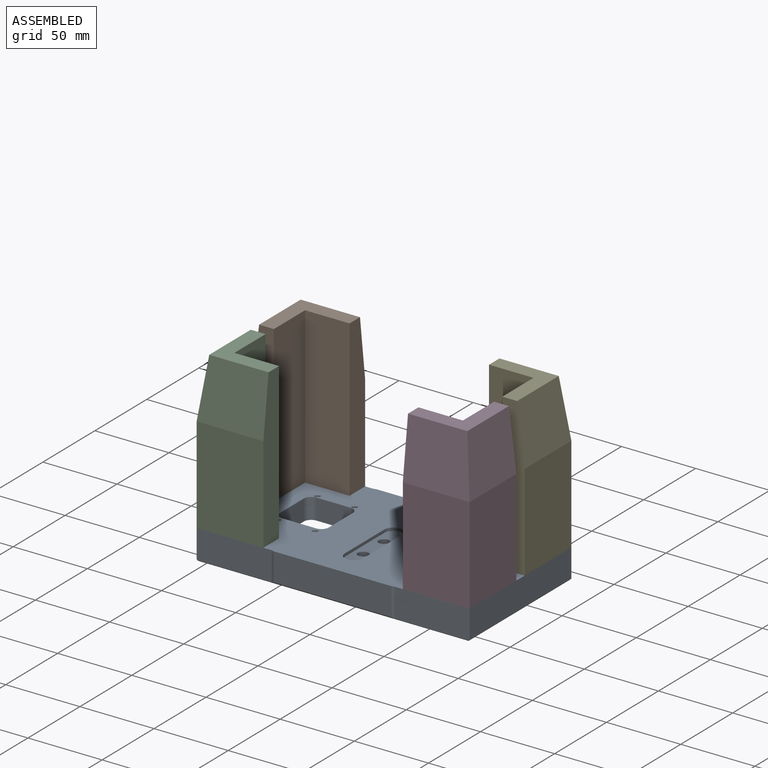
[diagram: assembled view]
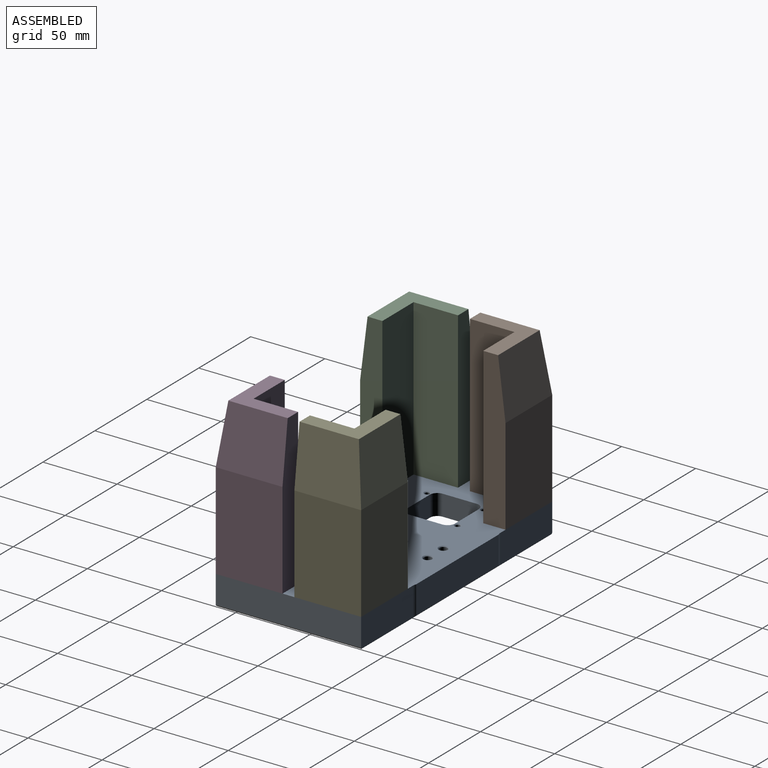
[diagram: assembled view, second angle]
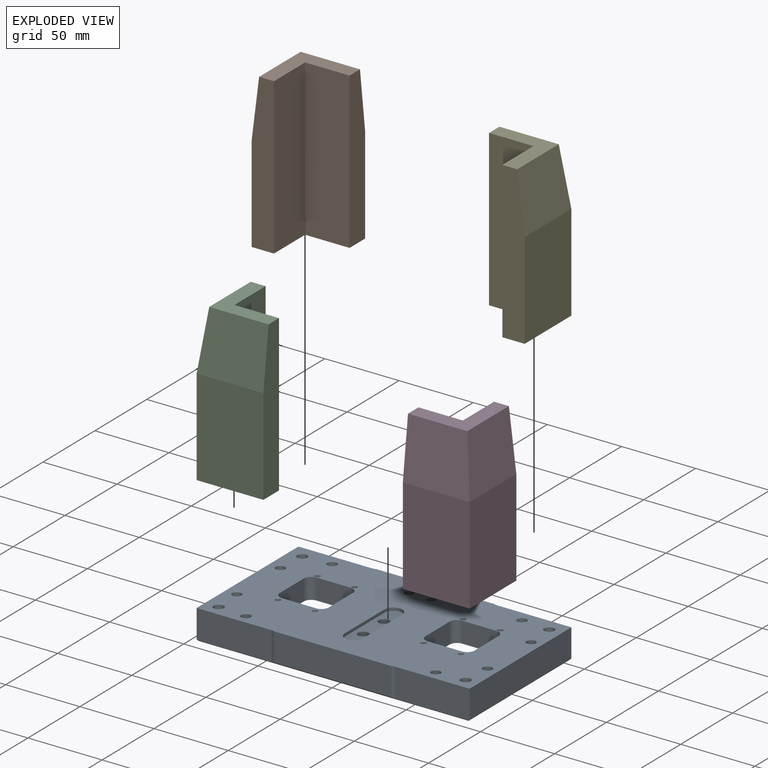
[diagram: exploded view]
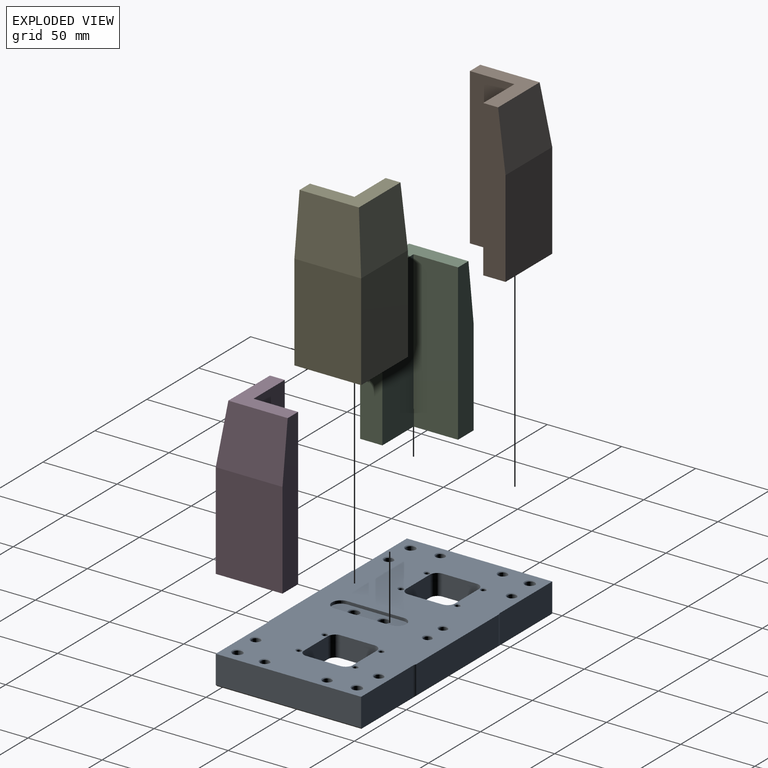
[diagram: exploded view, second angle]
ASSEMBLY  parts=5 mates=12
PART A: 144 faces, bbox 184x99x20 mm
  f0: cylinder r=2.88mm len=5.75mm, axis (0,0,1), area 61.9mm2, adj f94,f143
  f1: cylinder r=2.88mm len=5.75mm, axis (0,0,1), area 61.9mm2, adj f92,f142
  f2: cylinder r=2.88mm len=5.75mm, axis (0,0,1), area 61.9mm2, adj f90,f133
  f3: cylinder r=2.88mm len=5.75mm, axis (0,0,1), area 61.9mm2, adj f88,f132
  f4: cylinder r=2.88mm len=5.75mm, axis (0,0,1), area 61.9mm2, adj f86,f118
  f5: cylinder r=2.88mm len=5.75mm, axis (0,0,1), area 61.9mm2, adj f84,f119
  f6: cylinder r=2.88mm len=5.75mm, axis (0,0,1), area 61.9mm2, adj f82,f120
  f7: cylinder r=2.88mm len=5.75mm, axis (0,0,1), area 61.9mm2, adj f80,f121
  f8: plane 184x99mm, normal (0,0,1), area 14741.2mm2, adj f11,f12,f13,f14,f15,f16,f17,f18
  f9: plane 177.75x91.75mm, normal (0,0,-1), area 13087.8mm2, adj f23,f24,f25,f26,f27,f28,f29,f30
  f10: plane 182x97mm, normal (0,0,-1), area 1371.4mm2, adj f23,f24,f25,f26,f27,f28,f29,f30
  f11: plane 98x19mm, normal (-1,0,0), area 1862mm2, adj f8,f17,f22,f99
  f12: plane 79.64x19mm, normal (0,-1,0), area 1513.2mm2, adj f8,f20,f21,f97
  f13: plane 98x19mm, normal (1,0,0), area 1862mm2, adj f8,f15,f19,f96
  f14: plane 79.64x19mm, normal (0,1,0), area 1513.2mm2, adj f8,f16,f18,f98
  f15: plane 50x19.5mm, normal (0,1,0), area 974.9mm2, adj f8,f13,f16,f96,f98
  f16: cylinder r=5mm len=19.5mm, axis (0,0,1), area 43.6mm2, adj f8,f14,f15,f98
  f17: plane 50x19.5mm, normal (0,1,0), area 974.9mm2, adj f8,f11,f18,f98,f99
  f18: cylinder r=5mm len=19.5mm, axis (0,0,1), area 43.6mm2, adj f8,f14,f17,f98
  f19: plane 50x19.5mm, normal (0,-1,0), area 974.9mm2, adj f8,f13,f20,f96,f97
  f20: cylinder r=5mm len=19.5mm, axis (0,0,1), area 43.6mm2, adj f8,f12,f19,f97
  f21: cylinder r=5mm len=19.5mm, axis (0,0,1), area 43.6mm2, adj f8,f12,f22,f97
  f22: plane 50x19.5mm, normal (0,-1,0), area 974.9mm2, adj f8,f11,f21,f97,f99
  f23: plane 80.75x6mm, normal (1,0,0), area 484.5mm2, adj f9,f10,f27,f30
  f24: plane 166.75x6mm, normal (0,-1,0), area 1000.5mm2, adj f9,f10,f27,f28
  f25: plane 80.75x6mm, normal (-1,0,0), area 484.5mm2, adj f9,f10,f28,f29
  f26: plane 166.75x6mm, normal (0,1,0), area 1000.5mm2, adj f9,f10,f29,f30
  f27: cylinder r=5.5mm len=6mm, axis (0,0,-1), area 51.8mm2, adj f9,f10,f23,f24
  f28: cylinder r=5.5mm len=6mm, axis (0,0,1), area 51.8mm2, adj f9,f10,f24,f25
  f29: cylinder r=5.5mm len=6mm, axis (0,0,-1), area 51.8mm2, adj f9,f10,f25,f26
  f30: cylinder r=5.5mm len=6mm, axis (0,0,1), area 51.8mm2, adj f9,f10,f23,f26
  f31: cylinder r=3.25mm len=7.5mm, axis (0,0,-1), area 153.2mm2, adj f32,f104
  f32: plane 11x11mm, normal (0,0,-1), area 61.9mm2, adj f31,f33
  f33: cylinder r=5.5mm len=11mm, axis (0,0,-1), area 207.3mm2, adj f9,f32
  f34: cylinder r=3.25mm len=7.5mm, axis (0,0,-1), area 153.2mm2, adj f35,f110
  f35: plane 11x11mm, normal (0,0,-1), area 61.9mm2, adj f34,f36
  f36: cylinder r=5.5mm len=11mm, axis (0,0,-1), area 207.3mm2, adj f9,f35
  f37: cylinder r=3.25mm len=7.5mm, axis (0,0,-1), area 153.2mm2, adj f38,f109
  f38: plane 11x11mm, normal (0,0,-1), area 61.9mm2, adj f37,f39
  f39: cylinder r=5.5mm len=11mm, axis (0,0,-1), area 207.3mm2, adj f9,f38
  f40: cylinder r=3.25mm len=7.5mm, axis (0,0,-1), area 153.2mm2, adj f41,f101
  f41: plane 11x11mm, normal (0,0,-1), area 61.9mm2, adj f40,f42
  f42: cylinder r=5.5mm len=11mm, axis (0,0,-1), area 207.3mm2, adj f9,f41
  f43: plane 23x14mm, normal (1,0,0), area 322mm2, adj f8,f9,f47,f50
  f44: plane 23x14mm, normal (0,1,0), area 322mm2, adj f8,f9,f47,f48
  f45: plane 23x14mm, normal (-1,0,0), area 322mm2, adj f8,f9,f48,f49
  f46: plane 23x14mm, normal (0,-1,0), area 322mm2, adj f8,f9,f49,f50
  f47: cylinder r=5mm len=14mm, axis (0,0,1), area 110mm2, adj f8,f9,f43,f44
  f48: cylinder r=5mm len=14mm, axis (0,0,-1), area 110mm2, adj f8,f9,f44,f45
  f49: cylinder r=5mm len=14mm, axis (0,0,1), area 110mm2, adj f8,f9,f45,f46
  f50: cylinder r=5mm len=14mm, axis (0,0,-1), area 110mm2, adj f8,f9,f43,f46
  f51: cylinder r=1.65mm len=13mm, axis (0,0,1), area 134.8mm2, adj f136,f137
  f52: cylinder r=1.65mm len=13mm, axis (0,0,1), area 134.8mm2, adj f134,f135
  f53: cylinder r=1.65mm len=13mm, axis (0,0,1), area 134.8mm2, adj f138,f139
  f54: cylinder r=1.65mm len=13mm, axis (0,0,1), area 134.8mm2, adj f140,f141
  f55: plane 23x14mm, normal (-1,0,0), area 322mm2, adj f8,f9,f59,f62
  f56: plane 23x14mm, normal (0,-1,0), area 322mm2, adj f8,f9,f61,f62
  f57: plane 23x14mm, normal (1,0,0), area 322mm2, adj f8,f9,f60,f61
  f58: plane 23x14mm, normal (0,1,0), area 322mm2, adj f8,f9,f59,f60
  f59: cylinder r=5mm len=14mm, axis (0,0,1), area 110mm2, adj f8,f9,f55,f58
  f60: cylinder r=5mm len=14mm, axis (0,0,-1), area 110mm2, adj f8,f9,f57,f58
  f61: cylinder r=5mm len=14mm, axis (0,0,1), area 110mm2, adj f8,f9,f56,f57
  f62: cylinder r=5mm len=14mm, axis (0,0,-1), area 110mm2, adj f8,f9,f55,f56
  f63: cylinder r=1.65mm len=13mm, axis (0,0,1), area 134.8mm2, adj f126,f127
  f64: cylinder r=1.65mm len=13mm, axis (0,0,1), area 134.8mm2, adj f128,f129
  f65: cylinder r=1.65mm len=13mm, axis (0,0,1), area 134.8mm2, adj f122,f123
  f66: cylinder r=1.65mm len=13mm, axis (0,0,1), area 134.8mm2, adj f124,f125
  f67: cylinder r=2.75mm len=8.5mm, axis (0,0,-1), area 146.9mm2, adj f68,f106
  f68: plane 9.75x9.75mm, normal (0,0,-1), area 50.9mm2, adj f67,f69
  f69: cylinder r=4.88mm len=9.75mm, axis (0,0,-1), area 137.8mm2, adj f68,f131
  f70: cylinder r=2.75mm len=8.5mm, axis (0,0,-1), area 146.9mm2, adj f71,f107
  f71: plane 9.75x9.75mm, normal (0,0,-1), area 50.9mm2, adj f70,f72
  f72: cylinder r=4.88mm len=9.75mm, axis (0,0,-1), area 137.8mm2, adj f71,f130
  f73: plane 38x2mm, normal (-1,0,0), area 76mm2, adj f8,f74,f76,f77
  f74: cylinder r=6mm len=12.01mm, axis (0,0,1), area 37.7mm2, adj f8,f73,f75,f77
  f75: plane 38x2mm, normal (1,0,0), area 76mm2, adj f8,f74,f76,f77
  f76: cylinder r=6mm len=12.01mm, axis (0,0,1), area 37.7mm2, adj f8,f73,f75,f77
  f77: plane 50.01x12.01mm, normal (0,0,1), area 474.1mm2, adj f73,f74,f75,f76,f115,f117
  f78: cylinder r=3.4mm len=11mm, axis (0,0,1), area 235mm2, adj f116,f117
  f79: cylinder r=3.4mm len=11mm, axis (0,0,1), area 235mm2, adj f114,f115
  f80: cone r=0mm half-angle=59deg, axis (0,0,1), area 2.7mm2, adj f7,f81
  f81: cylinder r=3mm len=9.5mm, axis (0,0,1), area 179.1mm2, adj f80,f108
  f82: cone r=0mm half-angle=59deg, axis (0,0,1), area 2.7mm2, adj f6,f83
  f83: cylinder r=3mm len=9.5mm, axis (0,0,1), area 179.1mm2, adj f82,f112
  f84: cone r=0mm half-angle=59deg, axis (0,0,1), area 2.7mm2, adj f5,f85
  f85: cylinder r=3mm len=9.5mm, axis (0,0,1), area 179.1mm2, adj f84,f113
  f86: cone r=0mm half-angle=59deg, axis (0,0,1), area 2.7mm2, adj f4,f87
  f87: cylinder r=3mm len=9.5mm, axis (0,0,1), area 179.1mm2, adj f86,f111
  f88: cone r=0mm half-angle=59deg, axis (0,0,1), area 2.7mm2, adj f3,f89
  f89: cylinder r=3mm len=9.5mm, axis (0,0,1), area 179.1mm2, adj f88,f100
  f90: cone r=0mm half-angle=59deg, axis (0,0,1), area 2.7mm2, adj f2,f91
  f91: cylinder r=3mm len=9.5mm, axis (0,0,1), area 179.1mm2, adj f90,f102
  f92: cone r=0mm half-angle=59deg, axis (0,0,1), area 2.7mm2, adj f1,f93
  f93: cylinder r=3mm len=9.5mm, axis (0,0,1), area 179.1mm2, adj f92,f103
  f94: cone r=0mm half-angle=59deg, axis (0,0,1), area 2.7mm2, adj f0,f95
  f95: cylinder r=3mm len=9.5mm, axis (0,0,1), area 179.1mm2, adj f94,f105
  f96: plane 98x1mm, normal (0.71,0,-0.71), area 138.2mm2, adj f10,f13,f15,f19,f97,f98
  f97: plane 183x1mm, normal (0,-0.71,-0.71), area 186.4mm2, adj f10,f12,f19,f20,f21,f22,f96,f99
  f98: plane 183x1mm, normal (0,0.71,-0.71), area 186.4mm2, adj f10,f14,f15,f16,f17,f18,f96,f99
  f99: plane 98x1mm, normal (-0.71,0,-0.71), area 138.2mm2, adj f10,f11,f17,f22,f97,f98
  f100: cone r=3mm half-angle=45deg, axis (0,0,1), area 14.4mm2, adj f8,f89
  f101: cone r=3.75mm half-angle=45deg, axis (0,0,1), area 15.6mm2, adj f8,f40
  f102: cone r=3mm half-angle=45deg, axis (0,0,1), area 14.4mm2, adj f8,f91
  f103: cone r=3mm half-angle=45deg, axis (0,0,1), area 14.4mm2, adj f8,f93
  f104: cone r=3.75mm half-angle=45deg, axis (0,0,1), area 15.6mm2, adj f8,f31
  f105: cone r=3mm half-angle=45deg, axis (0,0,1), area 14.4mm2, adj f8,f95
  f106: cone r=3.25mm half-angle=45deg, axis (0,0,1), area 13.3mm2, adj f8,f67
  f107: cone r=3.25mm half-angle=45deg, axis (0,0,1), area 13.3mm2, adj f8,f70
  f108: cone r=3mm half-angle=45deg, axis (0,0,1), area 14.4mm2, adj f8,f81
  f109: cone r=3.75mm half-angle=45deg, axis (0,0,1), area 15.6mm2, adj f8,f37
  f110: cone r=3.75mm half-angle=45deg, axis (0,0,1), area 15.6mm2, adj f8,f34
  f111: cone r=3mm half-angle=45deg, axis (0,0,1), area 14.4mm2, adj f8,f87
  f112: cone r=3mm half-angle=45deg, axis (0,0,1), area 14.4mm2, adj f8,f83
  f113: cone r=3mm half-angle=45deg, axis (0,0,1), area 14.4mm2, adj f8,f85
  f114: cone r=3.9mm half-angle=45deg, axis (0,0,-1), area 16.2mm2, adj f9,f79
  f115: cone r=3.4mm half-angle=45deg, axis (0,0,1), area 16.2mm2, adj f77,f79
  f116: cone r=3.9mm half-angle=45deg, axis (0,0,-1), area 16.2mm2, adj f9,f78
  f117: cone r=3.4mm half-angle=45deg, axis (0,0,1), area 16.2mm2, adj f77,f78
  f118: cone r=3.38mm half-angle=45deg, axis (0,0,-1), area 13.9mm2, adj f4,f9
  f119: cone r=3.38mm half-angle=45deg, axis (0,0,-1), area 13.9mm2, adj f5,f9
  f120: cone r=3.38mm half-angle=45deg, axis (0,0,-1), area 13.9mm2, adj f6,f9
  f121: cone r=3.38mm half-angle=45deg, axis (0,0,-1), area 13.9mm2, adj f7,f9
  f122: cone r=2.15mm half-angle=45deg, axis (0,0,-1), area 8.4mm2, adj f9,f65
  f123: cone r=1.65mm half-angle=45deg, axis (0,0,1), area 8.4mm2, adj f8,f65
  f124: cone r=2.15mm half-angle=45deg, axis (0,0,-1), area 8.4mm2, adj f9,f66
  f125: cone r=1.65mm half-angle=45deg, axis (0,0,1), area 8.4mm2, adj f8,f66
  f126: cone r=2.15mm half-angle=45deg, axis (0,0,-1), area 8.4mm2, adj f9,f63
  f127: cone r=1.65mm half-angle=45deg, axis (0,0,1), area 8.4mm2, adj f8,f63
  f128: cone r=2.15mm half-angle=45deg, axis (0,0,-1), area 8.4mm2, adj f9,f64
  f129: cone r=1.65mm half-angle=45deg, axis (0,0,1), area 8.4mm2, adj f8,f64
  f130: cone r=4.88mm half-angle=45deg, axis (0,0,-1), area 22.8mm2, adj f9,f72
  f131: cone r=4.88mm half-angle=45deg, axis (0,0,-1), area 22.8mm2, adj f9,f69
  f132: cone r=3.38mm half-angle=45deg, axis (0,0,-1), area 13.9mm2, adj f3,f9
  f133: cone r=3.38mm half-angle=45deg, axis (0,0,-1), area 13.9mm2, adj f2,f9
  f134: cone r=2.15mm half-angle=45deg, axis (0,0,-1), area 8.4mm2, adj f9,f52
  f135: cone r=1.65mm half-angle=45deg, axis (0,0,1), area 8.4mm2, adj f8,f52
  f136: cone r=2.15mm half-angle=45deg, axis (0,0,-1), area 8.4mm2, adj f9,f51
  f137: cone r=1.65mm half-angle=45deg, axis (0,0,1), area 8.4mm2, adj f8,f51
  f138: cone r=2.15mm half-angle=45deg, axis (0,0,-1), area 8.4mm2, adj f9,f53
  f139: cone r=1.65mm half-angle=45deg, axis (0,0,1), area 8.4mm2, adj f8,f53
  f140: cone r=2.15mm half-angle=45deg, axis (0,0,-1), area 8.4mm2, adj f9,f54
  f141: cone r=1.65mm half-angle=45deg, axis (0,0,1), area 8.4mm2, adj f8,f54
  f142: cone r=3.38mm half-angle=45deg, axis (0,0,-1), area 13.9mm2, adj f1,f9
  f143: cone r=3.38mm half-angle=45deg, axis (0,0,-1), area 13.9mm2, adj f0,f9
PART B: 19 faces, bbox 45x45x105 mm
  f0: plane 105x15mm, normal (1,0,0), area 1475mm2, adj f1,f4,f5,f8,f9
  f1: plane 40x40mm, normal (0,0,1), area 700mm2, adj f0,f2,f5,f6,f7,f9
  f2: plane 45x40mm, normal (-0.99,0,0.12), area 1713.2mm2, adj f1,f3,f7,f9
  f3: plane 65x45mm, normal (-1,0,0), area 2925mm2, adj f2,f4,f7,f8
  f4: plane 65x45mm, normal (0,-1,0), area 2925mm2, adj f0,f3,f8,f9
  f5: plane 105x30mm, normal (0,1,0), area 3150mm2, adj f0,f1,f6,f8
  f6: plane 105x30mm, normal (1,0,0), area 3150mm2, adj f1,f5,f7,f8
  f7: plane 105x15mm, normal (0,1,0), area 1475mm2, adj f1,f2,f3,f6,f8
  f8: plane 45x45mm, normal (0,0,-1), area 1014.8mm2, adj f0,f3,f4,f5,f6,f7,f16,f17
  f9: plane 45x40mm, normal (0,-0.99,0.12), area 1713.2mm2, adj f0,f1,f2,f4
  f10: cone r=0mm half-angle=59deg, axis (0,0,-1), area 33mm2, adj f11
  f11: cylinder r=3mm len=19.5mm, axis (0,0,-1), area 367.6mm2, adj f10,f16
  f12: cone r=0mm half-angle=59deg, axis (0,0,-1), area 33mm2, adj f13
  f13: cylinder r=3mm len=19.5mm, axis (0,0,-1), area 367.6mm2, adj f12,f17
  f14: cone r=0mm half-angle=59deg, axis (0,0,-1), area 22.9mm2, adj f15
  f15: cylinder r=2.5mm len=18.25mm, axis (0,0,-1), area 286.7mm2, adj f14,f18
  f16: cone r=3mm half-angle=45deg, axis (0,0,-1), area 14.4mm2, adj f8,f11
  f17: cone r=3mm half-angle=45deg, axis (0,0,-1), area 14.4mm2, adj f8,f13
  f18: cone r=2.5mm half-angle=45deg, axis (0,0,-1), area 19.2mm2, adj f8,f15
PART C: same geometry as B
PART D: same geometry as B
PART E: same geometry as B
PLACE A t=(0,0,-6)mm
PLACE B rot(axis=(0,0,-1),90deg) t=(-92,49,14)mm
PLACE C t=(-92,-49,14)mm
PLACE D rot(axis=(0,0,1),90deg) t=(92,-49,14)mm
PLACE E rot(axis=(0,0,1),180deg) t=(92,49,14)mm
MATE cylindrical C.f12 <-> A.f0  axis (0,0,1) through (-64,-41.5,14.5)mm
MATE cylindrical B.f10 <-> A.f3  axis (0,0,-1) through (-64,41.5,14.5)mm
MATE planar B.f8 <-> A.f40  axis (0,0,-1) through (-77,34,14)mm
MATE cylindrical E.f10 <-> A.f6  axis (0,0,-1) through (84.5,21,14)mm
MATE cylindrical B.f12 <-> A.f2  axis (0,0,-1) through (-84.5,21,14)mm
MATE planar E.f12 <-> A.f6  axis (0,0,-1) through (64,41.5,14)mm
MATE cylindrical E.f12 <-> A.f7  axis (0,0,-1) through (64,41.5,14)mm
MATE planar C.f8 <-> A.f8  axis (0,0,-1) through (-92,-49,14)mm
MATE cylindrical D.f12 <-> A.f5  axis (0,0,-1) through (84.5,-21,14.5)mm
MATE cylindrical C.f10 <-> A.f1  axis (0,0,-1) through (-84.5,-21,14)mm
MATE planar A.f4 <-> D.f14  axis (0,0,1) through (64,-41.5,14)mm
MATE cylindrical A.f4 <-> D.f10  axis (0,0,1) through (64,-41.5,14)mm
